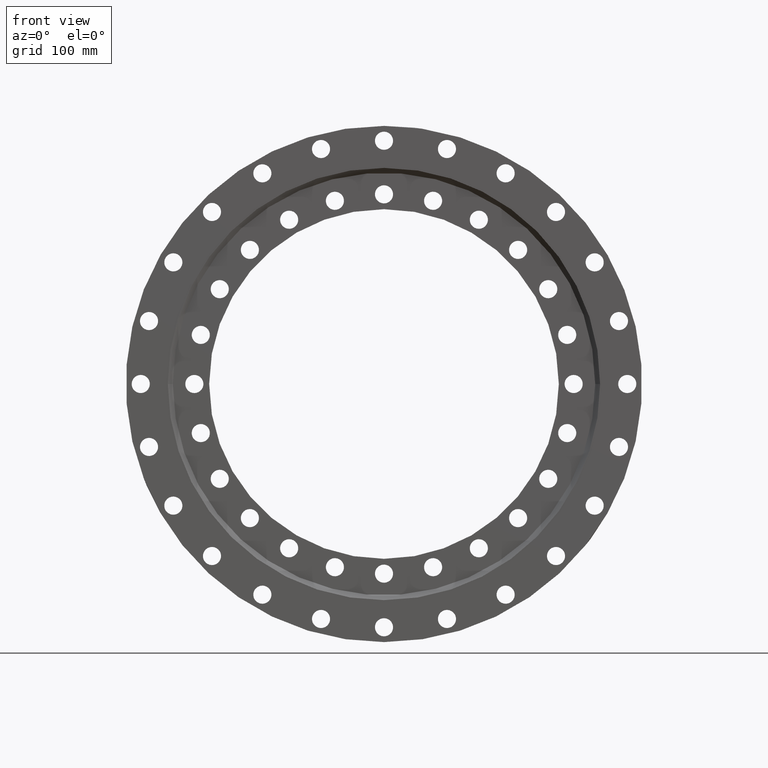
[diagram: clean part render]
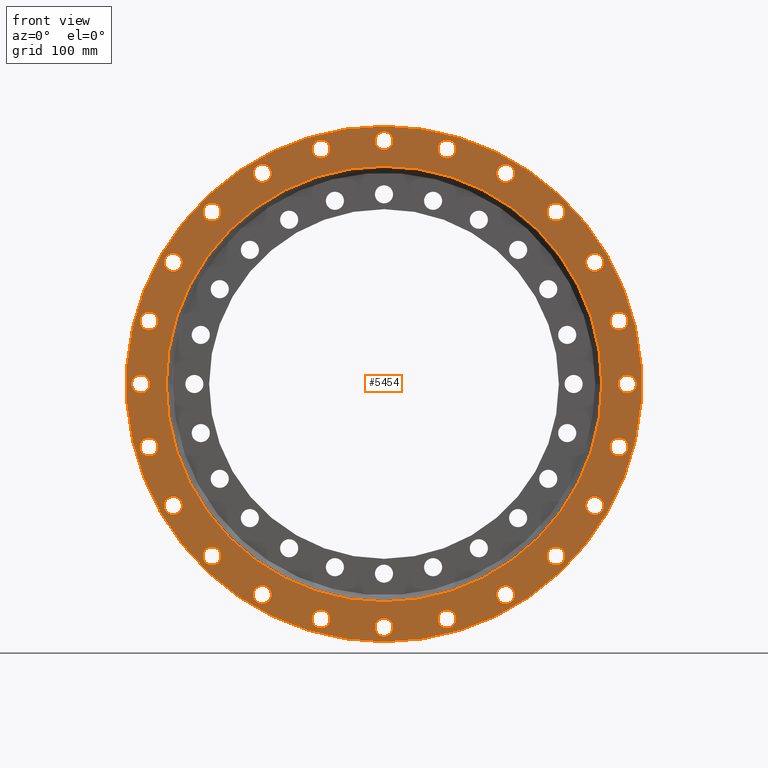
[diagram: same view with one face highlighted and labeled with its STEP entity id]
A machine part, front view. The second image highlights one B-rep face of the part: STEP entity #5454.
In plain terms, the highlighted planar face has unit normal (-0, 1, 0).
Its self-contained STEP definition (entity closure, byte-faithful):
#8 = AXIS2_PLACEMENT_3D ( 'NONE', #3671, #3073, #1724 ) ;
#30 = FACE_BOUND ( 'NONE', #47, .T. ) ;
#31 = CARTESIAN_POINT ( 'NONE',  ( -284.9481187552742700, -35.99999999999999300, 65.35161830524695900 ) ) ;
#47 = EDGE_LOOP ( 'NONE', ( #4061, #4042 ) ) ;
#64 = CARTESIAN_POINT ( 'NONE',  ( 76.35161830524161500, -35.99999999999999300, -284.9481187552756300 ) ) ;
#67 = DIRECTION ( 'NONE',  ( -0.4999999999999947300, 0.0000000000000000000, -0.8660254037844417100 ) ) ;
#76 = CIRCLE ( 'NONE', #5850, 10.99999999999999100 ) ;
#84 = VERTEX_POINT ( 'NONE', #4475 ) ;
#97 = CARTESIAN_POINT ( 'NONE',  ( 0.0000000000000000000, -35.99999999999999300, 312.5000000000000000 ) ) ;
#108 = VERTEX_POINT ( 'NONE', #2652 ) ;
#121 = DIRECTION ( 'NONE',  ( 0.7071067811865525700, 0.0000000000000000000, -0.7071067811865424700 ) ) ;
#122 = CARTESIAN_POINT ( 'NONE',  ( 147.4999999999983800, -35.99999999999999300, -255.4774941164103600 ) ) ;
#125 = FACE_BOUND ( 'NONE', #3091, .T. ) ;
#139 = DIRECTION ( 'NONE',  ( 0.0000000000000000000, 1.000000000000000000, 0.0000000000000000000 ) ) ;
#142 = EDGE_LOOP ( 'NONE', ( #3827, #3847 ) ) ;
#146 = DIRECTION ( 'NONE',  ( 0.8660254037844326000, 0.0000000000000000000, 0.5000000000000105500 ) ) ;
#187 = CARTESIAN_POINT ( 'NONE',  ( -284.9481187552759700, -35.99999999999999300, -65.35161830524064900 ) ) ;
#206 = DIRECTION ( 'NONE',  ( 0.0000000000000000000, 1.000000000000000000, 0.0000000000000000000 ) ) ;
#221 = CARTESIAN_POINT ( 'NONE',  ( -255.4774941164075700, -35.99999999999999300, 136.5000000000031300 ) ) ;
#243 = EDGE_LOOP ( 'NONE', ( #3895, #3871 ) ) ;
#265 = FACE_BOUND ( 'NONE', #1172, .T. ) ;
#266 = AXIS2_PLACEMENT_3D ( 'NONE', #2072, #2062, #2053 ) ;
#302 = CARTESIAN_POINT ( 'NONE',  ( 255.4774941164085600, -35.99999999999999300, -147.5000000000013400 ) ) ;
#329 = CARTESIAN_POINT ( 'NONE',  ( 295.0000000000000000, -35.99999999999999300, -11.00000000000121300 ) ) ;
#394 = FACE_BOUND ( 'NONE', #5261, .T. ) ;
#440 = VERTEX_POINT ( 'NONE', #5397 ) ;
#452 = VERTEX_POINT ( 'NONE', #5335 ) ;
#455 = DIRECTION ( 'NONE',  ( -0.9659258262890693100, 0.0000000000000000000, 0.2588190451025169100 ) ) ;
#469 = AXIS2_PLACEMENT_3D ( 'NONE', #1833, #1713, #1706 ) ;
#535 = EDGE_LOOP ( 'NONE', ( #3767, #3742 ) ) ;
#540 = DIRECTION ( 'NONE',  ( 0.5000000000000086600, 0.0000000000000000000, -0.8660254037844337100 ) ) ;
#546 = AXIS2_PLACEMENT_3D ( 'NONE', #755, #772, #1596 ) ;
#547 = VERTEX_POINT ( 'NONE', #2682 ) ;
#550 = EDGE_LOOP ( 'NONE', ( #3985, #3940 ) ) ;
#565 = CARTESIAN_POINT ( 'NONE',  ( -76.35161830524595000, -35.99999999999999300, -273.9481187552745500 ) ) ;
#568 = FACE_OUTER_BOUND ( 'NONE', #1059, .T. ) ;
#583 = CARTESIAN_POINT ( 'NONE',  ( 76.35161830524161500, -35.99999999999999300, -295.9481187552756300 ) ) ;
#622 = AXIS2_PLACEMENT_3D ( 'NONE', #3787, #3831, #3566 ) ;
#638 = VERTEX_POINT ( 'NONE', #2460 ) ;
#658 = VERTEX_POINT ( 'NONE', #2917 ) ;
#661 = AXIS2_PLACEMENT_3D ( 'NONE', #3005, #3065, #2992 ) ;
#664 = CARTESIAN_POINT ( 'NONE',  ( -295.0000000000000000, -35.99999999999999300, -10.99999999999673000 ) ) ;
#665 = EDGE_LOOP ( 'NONE', ( #3686, #3721 ) ) ;
#668 = EDGE_CURVE ( 'NONE', #4910, #948, #4683, .T. ) ;
#708 = EDGE_CURVE ( 'NONE', #4237, #1622, #3255, .T. ) ;
#740 = FACE_BOUND ( 'NONE', #2778, .T. ) ;
#743 = EDGE_CURVE ( 'NONE', #2469, #1125, #4312, .T. ) ;
#755 = CARTESIAN_POINT ( 'NONE',  ( -208.5965004500288300, -35.99999999999999300, 208.5965004500342300 ) ) ;
#772 = DIRECTION ( 'NONE',  ( 0.0000000000000000000, 1.000000000000000000, 0.0000000000000000000 ) ) ;
#789 = VERTEX_POINT ( 'NONE', #565 ) ;
#795 = EDGE_LOOP ( 'NONE', ( #4142, #4076 ) ) ;
#806 = AXIS2_PLACEMENT_3D ( 'NONE', #2436, #3575, #5389 ) ;
#810 = AXIS2_PLACEMENT_3D ( 'NONE', #5396, #5359, #5388 ) ;
#816 = CARTESIAN_POINT ( 'NONE',  ( 208.5965004500302800, -35.99999999999999300, -219.5965004500327500 ) ) ;
#842 = AXIS2_PLACEMENT_3D ( 'NONE', #1272, #1393, #1367 ) ;
#854 = VERTEX_POINT ( 'NONE', #2732 ) ;
#893 = EDGE_LOOP ( 'NONE', ( #4208, #4176 ) ) ;
#930 = CIRCLE ( 'NONE', #1194, 11.00000000000001100 ) ;
#948 = VERTEX_POINT ( 'NONE', #3992 ) ;
#994 = CIRCLE ( 'NONE', #622, 11.00000000000000900 ) ;
#998 = CARTESIAN_POINT ( 'NONE',  ( -295.0000000000000000, -35.99999999999999300, 11.00000000000327200 ) ) ;
#1003 = DIRECTION ( 'NONE',  ( 0.0000000000000000000, 1.000000000000000000, 0.0000000000000000000 ) ) ;
#1021 = CARTESIAN_POINT ( 'NONE',  ( 255.4774941164085600, -35.99999999999999300, -158.5000000000013400 ) ) ;
#1032 = CARTESIAN_POINT ( 'NONE',  ( 76.35161830524161500, -35.99999999999999300, -273.9481187552756300 ) ) ;
#1049 = AXIS2_PLACEMENT_3D ( 'NONE', #2067, #2031, #2025 ) ;
#1059 = EDGE_LOOP ( 'NONE', ( #3699, #3731 ) ) ;
#1077 = CIRCLE ( 'NONE', #1514, 11.00000000000002300 ) ;
#1091 = EDGE_CURVE ( 'NONE', #2144, #1589, #1836, .T. ) ;
#1112 = VERTEX_POINT ( 'NONE', #664 ) ;
#1125 = VERTEX_POINT ( 'NONE', #1908 ) ;
#1135 = CARTESIAN_POINT ( 'NONE',  ( -147.4999999999965900, -35.99999999999999300, 266.4774941164113800 ) ) ;
#1141 = CIRCLE ( 'NONE', #4225, 11.00000000000001100 ) ;
#1145 = FACE_BOUND ( 'NONE', #2120, .T. ) ;
#1156 = CARTESIAN_POINT ( 'NONE',  ( 255.4774941164098400, -35.99999999999999300, 147.4999999999992300 ) ) ;
#1170 = DIRECTION ( 'NONE',  ( 0.9659258262890655400, 0.0000000000000000000, 0.2588190451025311200 ) ) ;
#1172 = EDGE_LOOP ( 'NONE', ( #3903, #3914 ) ) ;
#1188 = EDGE_LOOP ( 'NONE', ( #3790, #3792 ) ) ;
#1194 = AXIS2_PLACEMENT_3D ( 'NONE', #3879, #3872, #3859 ) ;
#1217 = CARTESIAN_POINT ( 'NONE',  ( 284.9481187552747800, -35.99999999999999300, -76.35161830524495500 ) ) ;
#1219 = EDGE_LOOP ( 'NONE', ( #3950, #3930 ) ) ;
#1262 = AXIS2_PLACEMENT_3D ( 'NONE', #4391, #3220, #3820 ) ;
#1272 = CARTESIAN_POINT ( 'NONE',  ( 0.0000000000000000000, -35.99999999999999300, 264.0874999999999800 ) ) ;
#1276 = DIRECTION ( 'NONE',  ( 0.9659258262890708700, 0.0000000000000000000, -0.2588190451025110300 ) ) ;
#1293 = CIRCLE ( 'NONE', #546, 11.00000000000002100 ) ;
#1300 = FACE_BOUND ( 'NONE', #4440, .T. ) ;
#1304 = DIRECTION ( 'NONE',  ( 0.0000000000000000000, 1.000000000000000000, 0.0000000000000000000 ) ) ;
#1335 = AXIS2_PLACEMENT_3D ( 'NONE', #2458, #4892, #2479 ) ;
#1342 = DIRECTION ( 'NONE',  ( -0.8660254037844371500, 0.0000000000000000000, -0.5000000000000025500 ) ) ;
#1360 = PLANE ( 'NONE',  #842 ) ;
#1367 = DIRECTION ( 'NONE',  ( 0.0000000000000000000, 0.0000000000000000000, 1.000000000000000000 ) ) ;
#1382 = DIRECTION ( 'NONE',  ( 0.0000000000000000000, 1.000000000000000000, 0.0000000000000000000 ) ) ;
#1384 = CIRCLE ( 'NONE', #1414, 11.00000000000000000 ) ;
#1393 = DIRECTION ( 'NONE',  ( -0.0000000000000000000, 1.000000000000000000, 0.0000000000000000000 ) ) ;
#1414 = AXIS2_PLACEMENT_3D ( 'NONE', #1156, #1382, #146 ) ;
#1434 = EDGE_CURVE ( 'NONE', #1653, #4971, #4540, .T. ) ;
#1438 = FACE_BOUND ( 'NONE', #3902, .T. ) ;
#1450 = AXIS2_PLACEMENT_3D ( 'NONE', #5572, #5782, #5502 ) ;
#1458 = VERTEX_POINT ( 'NONE', #5601 ) ;
#1514 = AXIS2_PLACEMENT_3D ( 'NONE', #1693, #3459, #455 ) ;
#1534 = CARTESIAN_POINT ( 'NONE',  ( 208.5965004500302800, -35.99999999999999300, -208.5965004500327500 ) ) ;
#1552 = VERTEX_POINT ( 'NONE', #5703 ) ;
#1589 = VERTEX_POINT ( 'NONE', #3177 ) ;
#1596 = DIRECTION ( 'NONE',  ( -0.7071067811865486800, 0.0000000000000000000, 0.7071067811865462400 ) ) ;
#1622 = VERTEX_POINT ( 'NONE', #1032 ) ;
#1653 = VERTEX_POINT ( 'NONE', #1021 ) ;
#1693 = CARTESIAN_POINT ( 'NONE',  ( -284.9481187552742700, -35.99999999999999300, 76.35161830524694400 ) ) ;
#1697 = FACE_BOUND ( 'NONE', #2022, .T. ) ;
#1706 = DIRECTION ( 'NONE',  ( 0.8660254037844428200, 0.0000000000000000000, -0.4999999999999928900 ) ) ;
#1711 = DIRECTION ( 'NONE',  ( 0.0000000000000000000, -1.000000000000000000, 0.0000000000000000000 ) ) ;
#1713 = DIRECTION ( 'NONE',  ( 0.0000000000000000000, 1.000000000000000000, 0.0000000000000000000 ) ) ;
#1724 = DIRECTION ( 'NONE',  ( 0.7071067811865400200, 0.0000000000000000000, 0.7071067811865551200 ) ) ;
#1725 = VERTEX_POINT ( 'NONE', #4993 ) ;
#1727 = AXIS2_PLACEMENT_3D ( 'NONE', #2592, #2445, #2439 ) ;
#1759 = EDGE_CURVE ( 'NONE', #4213, #638, #5025, .T. ) ;
#1794 = CARTESIAN_POINT ( 'NONE',  ( 0.0000000000000000000, -35.99999999999999300, 264.0874999999999800 ) ) ;
#1814 = CARTESIAN_POINT ( 'NONE',  ( 284.9481187552747800, -35.99999999999999300, -76.35161830524495500 ) ) ;
#1833 = CARTESIAN_POINT ( 'NONE',  ( 255.4774941164085600, -35.99999999999999300, -147.5000000000013400 ) ) ;
#1836 = CIRCLE ( 'NONE', #1945, 10.99999999999998000 ) ;
#1849 = CARTESIAN_POINT ( 'NONE',  ( -208.5965004500334600, -35.99999999999999300, -208.5965004500295700 ) ) ;
#1851 = VERTEX_POINT ( 'NONE', #998 ) ;
#1873 = DIRECTION ( 'NONE',  ( 0.9659258262890708700, 0.0000000000000000000, -0.2588190451025110300 ) ) ;
#1908 = CARTESIAN_POINT ( 'NONE',  ( 147.4999999999983800, -35.99999999999999300, -244.4774941164103600 ) ) ;
#1918 = DIRECTION ( 'NONE',  ( 0.0000000000000000000, 1.000000000000000000, 0.0000000000000000000 ) ) ;
#1930 = VERTEX_POINT ( 'NONE', #4072 ) ;
#1936 = AXIS2_PLACEMENT_3D ( 'NONE', #5806, #1003, #1170 ) ;
#1945 = AXIS2_PLACEMENT_3D ( 'NONE', #2335, #206, #3577 ) ;
#1979 = EDGE_CURVE ( 'NONE', #854, #3386, #5500, .T. ) ;
#1985 = CIRCLE ( 'NONE', #2440, 11.00000000000001600 ) ;
#2022 = EDGE_LOOP ( 'NONE', ( #3717, #3750 ) ) ;
#2025 = DIRECTION ( 'NONE',  ( 0.2588190451025276200, 0.0000000000000000000, -0.9659258262890664200 ) ) ;
#2031 = DIRECTION ( 'NONE',  ( 0.0000000000000000000, 1.000000000000000000, 0.0000000000000000000 ) ) ;
#2053 = DIRECTION ( 'NONE',  ( 6.982962677686258800E-015, 0.0000000000000000000, -1.000000000000000000 ) ) ;
#2056 = CIRCLE ( 'NONE', #2584, 10.99999999999999300 ) ;
#2061 = CIRCLE ( 'NONE', #2891, 11.00000000000001400 ) ;
#2062 = DIRECTION ( 'NONE',  ( 0.0000000000000000000, 1.000000000000000000, 0.0000000000000000000 ) ) ;
#2067 = CARTESIAN_POINT ( 'NONE',  ( 76.35161830524161500, -35.99999999999999300, -284.9481187552756300 ) ) ;
#2072 = CARTESIAN_POINT ( 'NONE',  ( -2.242140230505032900E-012, -35.99999999999999300, -295.0000000000000000 ) ) ;
#2093 = CIRCLE ( 'NONE', #661, 264.0874999999999800 ) ;
#2108 = AXIS2_PLACEMENT_3D ( 'NONE', #4480, #4484, #4343 ) ;
#2120 = EDGE_LOOP ( 'NONE', ( #4080, #4096 ) ) ;
#2129 = VERTEX_POINT ( 'NONE', #97 ) ;
#2141 = CIRCLE ( 'NONE', #2302, 11.00000000000000000 ) ;
#2144 = VERTEX_POINT ( 'NONE', #221 ) ;
#2153 = VERTEX_POINT ( 'NONE', #187 ) ;
#2173 = CIRCLE ( 'NONE', #4371, 10.99999999999999100 ) ;
#2184 = DIRECTION ( 'NONE',  ( 0.0000000000000000000, 1.000000000000000000, 0.0000000000000000000 ) ) ;
#2186 = CARTESIAN_POINT ( 'NONE',  ( -284.9481187552759700, -35.99999999999999300, -76.35161830524064900 ) ) ;
#2224 = CARTESIAN_POINT ( 'NONE',  ( 208.5965004500320400, -35.99999999999999300, 197.5965004500309900 ) ) ;
#2235 = VERTEX_POINT ( 'NONE', #816 ) ;
#2244 = VERTEX_POINT ( 'NONE', #1135 ) ;
#2302 = AXIS2_PLACEMENT_3D ( 'NONE', #3009, #3007, #3001 ) ;
#2306 = DIRECTION ( 'NONE',  ( 0.5000000000000086600, 0.0000000000000000000, -0.8660254037844337100 ) ) ;
#2312 = AXIS2_PLACEMENT_3D ( 'NONE', #3458, #5304, #1342 ) ;
#2335 = CARTESIAN_POINT ( 'NONE',  ( -255.4774941164075700, -35.99999999999999300, 147.5000000000031300 ) ) ;
#2340 = EDGE_CURVE ( 'NONE', #1851, #1112, #5203, .T. ) ;
#2353 = VERTEX_POINT ( 'NONE', #4541 ) ;
#2387 = EDGE_CURVE ( 'NONE', #2235, #2353, #5138, .T. ) ;
#2393 = DIRECTION ( 'NONE',  ( 0.0000000000000000000, 1.000000000000000000, 0.0000000000000000000 ) ) ;
#2401 = FACE_BOUND ( 'NONE', #243, .T. ) ;
#2402 = CARTESIAN_POINT ( 'NONE',  ( -147.4999999999965900, -35.99999999999999300, 255.4774941164113500 ) ) ;
#2411 = CARTESIAN_POINT ( 'NONE',  ( 147.5000000000004300, -35.99999999999999300, 255.4774941164091300 ) ) ;
#2413 = CARTESIAN_POINT ( 'NONE',  ( 147.4999999999983800, -35.99999999999999300, -255.4774941164103600 ) ) ;
#2423 = CIRCLE ( 'NONE', #266, 11.00000000000001100 ) ;
#2426 = CIRCLE ( 'NONE', #1049, 10.99999999999999800 ) ;
#2429 = DIRECTION ( 'NONE',  ( -0.5000000000000007800, 0.0000000000000000000, 0.8660254037844382600 ) ) ;
#2430 = CIRCLE ( 'NONE', #1727, 10.99999999999998000 ) ;
#2433 = CIRCLE ( 'NONE', #3694, 10.99999999999998600 ) ;
#2435 = DIRECTION ( 'NONE',  ( 0.0000000000000000000, 1.000000000000000000, 0.0000000000000000000 ) ) ;
#2436 = CARTESIAN_POINT ( 'NONE',  ( -295.0000000000000000, -35.99999999999999300, 3.272127225463757200E-012 ) ) ;
#2437 = DIRECTION ( 'NONE',  ( -0.9659258262890670900, 0.0000000000000000000, -0.2588190451025252400 ) ) ;
#2439 = DIRECTION ( 'NONE',  ( -0.2588190451025216800, 0.0000000000000000000, 0.9659258262890679800 ) ) ;
#2440 = AXIS2_PLACEMENT_3D ( 'NONE', #3182, #3217, #3201 ) ;
#2445 = DIRECTION ( 'NONE',  ( 0.0000000000000000000, 1.000000000000000000, 0.0000000000000000000 ) ) ;
#2458 = CARTESIAN_POINT ( 'NONE',  ( -255.4774941164075700, -35.99999999999999300, 147.5000000000031300 ) ) ;
#2460 = CARTESIAN_POINT ( 'NONE',  ( -284.9481187552742700, -35.99999999999999300, 87.35161830524694400 ) ) ;
#2469 = VERTEX_POINT ( 'NONE', #5153 ) ;
#2479 = DIRECTION ( 'NONE',  ( -0.8660254037844393700, 0.0000000000000000000, 0.4999999999999987800 ) ) ;
#2487 = CIRCLE ( 'NONE', #3768, 11.00000000000000500 ) ;
#2530 = FACE_BOUND ( 'NONE', #3724, .T. ) ;
#2531 = EDGE_CURVE ( 'NONE', #5178, #5137, #4846, .T. ) ;
#2561 = DIRECTION ( 'NONE',  ( -0.4999999999999947300, 0.0000000000000000000, -0.8660254037844417100 ) ) ;
#2584 = AXIS2_PLACEMENT_3D ( 'NONE', #2922, #2954, #2948 ) ;
#2592 = CARTESIAN_POINT ( 'NONE',  ( -76.35161830523965400, -35.99999999999999300, 284.9481187552762000 ) ) ;
#2609 = FACE_BOUND ( 'NONE', #893, .T. ) ;
#2620 = EDGE_CURVE ( 'NONE', #2244, #452, #5279, .T. ) ;
#2627 = EDGE_CURVE ( 'NONE', #1589, #2144, #3193, .T. ) ;
#2652 = CARTESIAN_POINT ( 'NONE',  ( -208.5965004500334600, -35.99999999999999300, -197.5965004500295400 ) ) ;
#2654 = CIRCLE ( 'NONE', #3316, 11.00000000000001100 ) ;
#2676 = FACE_BOUND ( 'NONE', #5089, .T. ) ;
#2682 = CARTESIAN_POINT ( 'NONE',  ( 284.9481187552753500, -35.99999999999999300, 87.35161830524261000 ) ) ;
#2693 = DIRECTION ( 'NONE',  ( 0.0000000000000000000, 0.0000000000000000000, 1.000000000000000000 ) ) ;
#2699 = DIRECTION ( 'NONE',  ( 0.0000000000000000000, 1.000000000000000000, 0.0000000000000000000 ) ) ;
#2708 = AXIS2_PLACEMENT_3D ( 'NONE', #3391, #3387, #3419 ) ;
#2711 = CIRCLE ( 'NONE', #5149, 11.00000000000000900 ) ;
#2718 = VERTEX_POINT ( 'NONE', #2836 ) ;
#2725 = VERTEX_POINT ( 'NONE', #2949 ) ;
#2732 = CARTESIAN_POINT ( 'NONE',  ( -255.4774941164109000, -35.99999999999999300, -158.4999999999975000 ) ) ;
#2740 = EDGE_CURVE ( 'NONE', #638, #4213, #1077, .T. ) ;
#2756 = CARTESIAN_POINT ( 'NONE',  ( 0.0000000000000000000, -35.99999999999999300, 0.0000000000000000000 ) ) ;
#2758 = DIRECTION ( 'NONE',  ( -0.0000000000000000000, 1.000000000000000000, -0.0000000000000000000 ) ) ;
#2769 = VERTEX_POINT ( 'NONE', #3504 ) ;
#2778 = EDGE_LOOP ( 'NONE', ( #4110, #4159 ) ) ;
#2836 = CARTESIAN_POINT ( 'NONE',  ( -76.35161830524595000, -35.99999999999999300, -295.9481187552745500 ) ) ;
#2845 = CIRCLE ( 'NONE', #2708, 11.00000000000000000 ) ;
#2884 = DIRECTION ( 'NONE',  ( 0.0000000000000000000, 1.000000000000000000, 0.0000000000000000000 ) ) ;
#2891 = AXIS2_PLACEMENT_3D ( 'NONE', #3132, #3124, #2561 ) ;
#2902 = CIRCLE ( 'NONE', #469, 11.00000000000000000 ) ;
#2917 = CARTESIAN_POINT ( 'NONE',  ( -147.5000000000022200, -35.99999999999999300, -266.4774941164080800 ) ) ;
#2919 = CIRCLE ( 'NONE', #4172, 11.00000000000001400 ) ;
#2922 = CARTESIAN_POINT ( 'NONE',  ( 76.35161830524396000, -35.99999999999999300, 284.9481187552750600 ) ) ;
#2948 = DIRECTION ( 'NONE',  ( 0.2588190451025075300, 0.0000000000000000000, 0.9659258262890719800 ) ) ;
#2949 = CARTESIAN_POINT ( 'NONE',  ( 284.9481187552753500, -35.99999999999999300, 65.35161830524262400 ) ) ;
#2954 = DIRECTION ( 'NONE',  ( 0.0000000000000000000, 1.000000000000000000, 0.0000000000000000000 ) ) ;
#2976 = EDGE_CURVE ( 'NONE', #5310, #4877, #1293, .T. ) ;
#2992 = DIRECTION ( 'NONE',  ( 0.0000000000000000000, 0.0000000000000000000, 1.000000000000000000 ) ) ;
#3001 = DIRECTION ( 'NONE',  ( -0.7071067811865450200, 0.0000000000000000000, -0.7071067811865501300 ) ) ;
#3005 = CARTESIAN_POINT ( 'NONE',  ( 0.0000000000000000000, -35.99999999999999300, 0.0000000000000000000 ) ) ;
#3007 = DIRECTION ( 'NONE',  ( 0.0000000000000000000, 1.000000000000000000, 0.0000000000000000000 ) ) ;
#3009 = CARTESIAN_POINT ( 'NONE',  ( -208.5965004500334600, -35.99999999999999300, -208.5965004500295700 ) ) ;
#3046 = CIRCLE ( 'NONE', #1262, 312.5000000000000000 ) ;
#3058 = CIRCLE ( 'NONE', #5239, 11.00000000000001100 ) ;
#3065 = DIRECTION ( 'NONE',  ( -0.0000000000000000000, 1.000000000000000000, -0.0000000000000000000 ) ) ;
#3073 = DIRECTION ( 'NONE',  ( 0.0000000000000000000, 1.000000000000000000, 0.0000000000000000000 ) ) ;
#3077 = CIRCLE ( 'NONE', #3278, 10.99999999999997200 ) ;
#3083 = DIRECTION ( 'NONE',  ( 0.0000000000000000000, 1.000000000000000000, 0.0000000000000000000 ) ) ;
#3091 = EDGE_LOOP ( 'NONE', ( #3865, #3840 ) ) ;
#3106 = CARTESIAN_POINT ( 'NONE',  ( 147.5000000000004300, -35.99999999999999300, 255.4774941164091300 ) ) ;
#3114 = CARTESIAN_POINT ( 'NONE',  ( 4.302114220422481600E-012, -35.99999999999999300, 295.0000000000000000 ) ) ;
#3124 = DIRECTION ( 'NONE',  ( 0.0000000000000000000, 1.000000000000000000, 0.0000000000000000000 ) ) ;
#3132 = CARTESIAN_POINT ( 'NONE',  ( -147.5000000000022200, -35.99999999999999300, -255.4774941164080800 ) ) ;
#3137 = CIRCLE ( 'NONE', #5422, 10.99999999999998000 ) ;
#3141 = CIRCLE ( 'NONE', #3817, 312.5000000000000000 ) ;
#3143 = CARTESIAN_POINT ( 'NONE',  ( 76.35161830524396000, -35.99999999999999300, 295.9481187552750600 ) ) ;
#3175 = DIRECTION ( 'NONE',  ( 0.0000000000000000000, 0.0000000000000000000, 1.000000000000000000 ) ) ;
#3177 = CARTESIAN_POINT ( 'NONE',  ( -255.4774941164075700, -35.99999999999999300, 158.5000000000031300 ) ) ;
#3182 = CARTESIAN_POINT ( 'NONE',  ( -76.35161830524595000, -35.99999999999999300, -284.9481187552745500 ) ) ;
#3185 = DIRECTION ( 'NONE',  ( 0.4999999999999891200, 0.0000000000000000000, 0.8660254037844450400 ) ) ;
#3187 = EDGE_CURVE ( 'NONE', #1458, #5049, #4649, .T. ) ;
#3193 = CIRCLE ( 'NONE', #1335, 10.99999999999998000 ) ;
#3201 = DIRECTION ( 'NONE',  ( -0.2588190451025145200, 0.0000000000000000000, -0.9659258262890698700 ) ) ;
#3211 = CIRCLE ( 'NONE', #3406, 10.99999999999999300 ) ;
#3217 = DIRECTION ( 'NONE',  ( 0.0000000000000000000, 1.000000000000000000, 0.0000000000000000000 ) ) ;
#3220 = DIRECTION ( 'NONE',  ( 0.0000000000000000000, -1.000000000000000000, 0.0000000000000000000 ) ) ;
#3225 = CIRCLE ( 'NONE', #8, 11.00000000000000000 ) ;
#3234 = VERTEX_POINT ( 'NONE', #4516 ) ;
#3255 = CIRCLE ( 'NONE', #5120, 10.99999999999999800 ) ;
#3260 = VERTEX_POINT ( 'NONE', #4268 ) ;
#3278 = AXIS2_PLACEMENT_3D ( 'NONE', #3106, #3083, #3185 ) ;
#3280 = DIRECTION ( 'NONE',  ( 0.0000000000000000000, 1.000000000000000000, 0.0000000000000000000 ) ) ;
#3294 = DIRECTION ( 'NONE',  ( 0.8660254037844428200, 0.0000000000000000000, -0.4999999999999928900 ) ) ;
#3299 = CARTESIAN_POINT ( 'NONE',  ( -284.9481187552742700, -35.99999999999999300, 76.35161830524694400 ) ) ;
#3304 = CARTESIAN_POINT ( 'NONE',  ( -2.242140230505032900E-012, -35.99999999999999300, -295.0000000000000000 ) ) ;
#3305 = CIRCLE ( 'NONE', #806, 11.00000000000001100 ) ;
#3316 = AXIS2_PLACEMENT_3D ( 'NONE', #3304, #3816, #3841 ) ;
#3332 = EDGE_CURVE ( 'NONE', #3860, #1725, #2845, .T. ) ;
#3336 = DIRECTION ( 'NONE',  ( 0.0000000000000000000, 1.000000000000000000, 0.0000000000000000000 ) ) ;
#3348 = EDGE_LOOP ( 'NONE', ( #3932, #3880 ) ) ;
#3374 = CARTESIAN_POINT ( 'NONE',  ( -208.5965004500288300, -35.99999999999999300, 197.5965004500342000 ) ) ;
#3386 = VERTEX_POINT ( 'NONE', #4073 ) ;
#3387 = DIRECTION ( 'NONE',  ( 0.0000000000000000000, 1.000000000000000000, 0.0000000000000000000 ) ) ;
#3391 = CARTESIAN_POINT ( 'NONE',  ( 208.5965004500320400, -35.99999999999999300, 208.5965004500310200 ) ) ;
#3395 = FACE_BOUND ( 'NONE', #665, .T. ) ;
#3400 = DIRECTION ( 'NONE',  ( 0.0000000000000000000, 1.000000000000000000, 0.0000000000000000000 ) ) ;
#3406 = AXIS2_PLACEMENT_3D ( 'NONE', #3499, #3493, #4253 ) ;
#3419 = DIRECTION ( 'NONE',  ( 0.7071067811865400200, 0.0000000000000000000, 0.7071067811865551200 ) ) ;
#3426 = EDGE_CURVE ( 'NONE', #440, #4739, #2654, .T. ) ;
#3454 = VERTEX_POINT ( 'NONE', #4411 ) ;
#3458 = CARTESIAN_POINT ( 'NONE',  ( -255.4774941164109000, -35.99999999999999300, -147.4999999999975000 ) ) ;
#3459 = DIRECTION ( 'NONE',  ( 0.0000000000000000000, 1.000000000000000000, 0.0000000000000000000 ) ) ;
#3479 = CIRCLE ( 'NONE', #1450, 11.00000000000001600 ) ;
#3484 = DIRECTION ( 'NONE',  ( -0.7071067811865486800, 0.0000000000000000000, 0.7071067811865462400 ) ) ;
#3489 = DIRECTION ( 'NONE',  ( 0.0000000000000000000, 1.000000000000000000, 0.0000000000000000000 ) ) ;
#3493 = DIRECTION ( 'NONE',  ( 0.0000000000000000000, 1.000000000000000000, 0.0000000000000000000 ) ) ;
#3497 = CARTESIAN_POINT ( 'NONE',  ( -208.5965004500288300, -35.99999999999999300, 208.5965004500342300 ) ) ;
#3499 = CARTESIAN_POINT ( 'NONE',  ( 76.35161830524396000, -35.99999999999999300, 284.9481187552750600 ) ) ;
#3504 = CARTESIAN_POINT ( 'NONE',  ( 3.234139115698266400E-014, -35.99999999999999300, -264.0874999999999800 ) ) ;
#3510 = EDGE_CURVE ( 'NONE', #4877, #5310, #4613, .T. ) ;
#3533 = EDGE_CURVE ( 'NONE', #2725, #547, #2711, .T. ) ;
#3537 = DIRECTION ( 'NONE',  ( -0.9659258262890670900, 0.0000000000000000000, -0.2588190451025252400 ) ) ;
#3543 = DIRECTION ( 'NONE',  ( 0.0000000000000000000, 1.000000000000000000, 0.0000000000000000000 ) ) ;
#3546 = EDGE_CURVE ( 'NONE', #2153, #4130, #76, .T. ) ;
#3566 = DIRECTION ( 'NONE',  ( -0.8660254037844371500, 0.0000000000000000000, -0.5000000000000025500 ) ) ;
#3572 = CARTESIAN_POINT ( 'NONE',  ( -284.9481187552759700, -35.99999999999999300, -76.35161830524064900 ) ) ;
#3575 = DIRECTION ( 'NONE',  ( 0.0000000000000000000, 1.000000000000000000, 0.0000000000000000000 ) ) ;
#3577 = DIRECTION ( 'NONE',  ( -0.8660254037844393700, 0.0000000000000000000, 0.4999999999999987800 ) ) ;
#3579 = EDGE_CURVE ( 'NONE', #3386, #854, #994, .T. ) ;
#3606 = EDGE_CURVE ( 'NONE', #4205, #1930, #930, .T. ) ;
#3608 = FACE_BOUND ( 'NONE', #3348, .T. ) ;
#3621 = DIRECTION ( 'NONE',  ( 0.9659258262890655400, 0.0000000000000000000, 0.2588190451025311200 ) ) ;
#3625 = EDGE_CURVE ( 'NONE', #108, #3234, #2141, .T. ) ;
#3634 = DIRECTION ( 'NONE',  ( 0.0000000000000000000, 1.000000000000000000, 0.0000000000000000000 ) ) ;
#3640 = EDGE_CURVE ( 'NONE', #4647, #3685, #2056, .T. ) ;
#3645 = CARTESIAN_POINT ( 'NONE',  ( 284.9481187552753500, -35.99999999999999300, 76.35161830524262400 ) ) ;
#3648 = CARTESIAN_POINT ( 'NONE',  ( -76.35161830523965400, -35.99999999999999300, 284.9481187552762000 ) ) ;
#3652 = DIRECTION ( 'NONE',  ( 0.0000000000000000000, 1.000000000000000000, 0.0000000000000000000 ) ) ;
#3656 = EDGE_CURVE ( 'NONE', #5075, #658, #2061, .T. ) ;
#3671 = CARTESIAN_POINT ( 'NONE',  ( 208.5965004500320400, -35.99999999999999300, 208.5965004500310200 ) ) ;
#3685 = VERTEX_POINT ( 'NONE', #3143 ) ;
#3686 = ORIENTED_EDGE ( 'NONE', *, *, #5639, .T. ) ;
#3687 = CIRCLE ( 'NONE', #810, 10.99999999999999500 ) ;
#3694 = AXIS2_PLACEMENT_3D ( 'NONE', #2413, #2393, #2306 ) ;
#3699 = ORIENTED_EDGE ( 'NONE', *, *, #4536, .T. ) ;
#3700 = CIRCLE ( 'NONE', #5570, 11.00000000000000000 ) ;
#3702 = AXIS2_PLACEMENT_3D ( 'NONE', #4455, #3400, #4349 ) ;
#3717 = ORIENTED_EDGE ( 'NONE', *, *, #4498, .T. ) ;
#3718 = EDGE_CURVE ( 'NONE', #789, #2718, #1985, .T. ) ;
#3721 = ORIENTED_EDGE ( 'NONE', *, *, #5579, .T. ) ;
#3724 = EDGE_LOOP ( 'NONE', ( #4020, #3991 ) ) ;
#3731 = ORIENTED_EDGE ( 'NONE', *, *, #4274, .T. ) ;
#3742 = ORIENTED_EDGE ( 'NONE', *, *, #3785, .T. ) ;
#3745 = FACE_BOUND ( 'NONE', #550, .T. ) ;
#3749 = DIRECTION ( 'NONE',  ( -0.7071067811865450200, 0.0000000000000000000, -0.7071067811865501300 ) ) ;
#3750 = ORIENTED_EDGE ( 'NONE', *, *, #4151, .T. ) ;
#3756 = ORIENTED_EDGE ( 'NONE', *, *, #4331, .T. ) ;
#3767 = ORIENTED_EDGE ( 'NONE', *, *, #4403, .T. ) ;
#3768 = AXIS2_PLACEMENT_3D ( 'NONE', #1217, #1304, #1276 ) ;
#3769 = EDGE_CURVE ( 'NONE', #4130, #2153, #2173, .T. ) ;
#3785 = EDGE_CURVE ( 'NONE', #5611, #3454, #2430, .T. ) ;
#3787 = CARTESIAN_POINT ( 'NONE',  ( -255.4774941164109000, -35.99999999999999300, -147.4999999999975000 ) ) ;
#3789 = ORIENTED_EDGE ( 'NONE', *, *, #4297, .T. ) ;
#3790 = ORIENTED_EDGE ( 'NONE', *, *, #4461, .T. ) ;
#3791 = CIRCLE ( 'NONE', #2108, 11.00000000000001100 ) ;
#3792 = ORIENTED_EDGE ( 'NONE', *, *, #3640, .T. ) ;
#3801 = DIRECTION ( 'NONE',  ( 0.0000000000000000000, 0.0000000000000000000, 1.000000000000000000 ) ) ;
#3806 = EDGE_CURVE ( 'NONE', #4739, #440, #2423, .T. ) ;
#3813 = ORIENTED_EDGE ( 'NONE', *, *, #668, .T. ) ;
#3816 = DIRECTION ( 'NONE',  ( 0.0000000000000000000, 1.000000000000000000, 0.0000000000000000000 ) ) ;
#3817 = AXIS2_PLACEMENT_3D ( 'NONE', #4212, #1711, #3175 ) ;
#3820 = DIRECTION ( 'NONE',  ( 0.0000000000000000000, 0.0000000000000000000, 1.000000000000000000 ) ) ;
#3827 = ORIENTED_EDGE ( 'NONE', *, *, #4249, .T. ) ;
#3831 = DIRECTION ( 'NONE',  ( 0.0000000000000000000, 1.000000000000000000, 0.0000000000000000000 ) ) ;
#3836 = EDGE_CURVE ( 'NONE', #1125, #2469, #2433, .T. ) ;
#3837 = ORIENTED_EDGE ( 'NONE', *, *, #3332, .T. ) ;
#3840 = ORIENTED_EDGE ( 'NONE', *, *, #3533, .T. ) ;
#3841 = DIRECTION ( 'NONE',  ( 6.982962677686258800E-015, 0.0000000000000000000, -1.000000000000000000 ) ) ;
#3847 = ORIENTED_EDGE ( 'NONE', *, *, #3187, .T. ) ;
#3850 = AXIS2_PLACEMENT_3D ( 'NONE', #3299, #2884, #3969 ) ;
#3859 = DIRECTION ( 'NONE',  ( 1.000000000000000000, 0.0000000000000000000, 1.047444401652938900E-014 ) ) ;
#3860 = VERTEX_POINT ( 'NONE', #2224 ) ;
#3865 = ORIENTED_EDGE ( 'NONE', *, *, #4217, .T. ) ;
#3871 = ORIENTED_EDGE ( 'NONE', *, *, #2531, .T. ) ;
#3872 = DIRECTION ( 'NONE',  ( 0.0000000000000000000, 1.000000000000000000, 0.0000000000000000000 ) ) ;
#3876 = EDGE_CURVE ( 'NONE', #1622, #4237, #2426, .T. ) ;
#3877 = FACE_BOUND ( 'NONE', #535, .T. ) ;
#3879 = CARTESIAN_POINT ( 'NONE',  ( 295.0000000000000000, -35.99999999999999300, -1.212153235546308700E-012 ) ) ;
#3880 = ORIENTED_EDGE ( 'NONE', *, *, #1434, .T. ) ;
#3889 = ORIENTED_EDGE ( 'NONE', *, *, #3606, .T. ) ;
#3895 = ORIENTED_EDGE ( 'NONE', *, *, #3984, .T. ) ;
#3902 = EDGE_LOOP ( 'NONE', ( #3989, #3934 ) ) ;
#3903 = ORIENTED_EDGE ( 'NONE', *, *, #3836, .T. ) ;
#3914 = ORIENTED_EDGE ( 'NONE', *, *, #743, .T. ) ;
#3917 = EDGE_CURVE ( 'NONE', #4971, #1653, #2902, .T. ) ;
#3924 = ORIENTED_EDGE ( 'NONE', *, *, #4129, .T. ) ;
#3930 = ORIENTED_EDGE ( 'NONE', *, *, #2387, .T. ) ;
#3932 = ORIENTED_EDGE ( 'NONE', *, *, #3917, .T. ) ;
#3934 = ORIENTED_EDGE ( 'NONE', *, *, #708, .T. ) ;
#3940 = ORIENTED_EDGE ( 'NONE', *, *, #3426, .T. ) ;
#3950 = ORIENTED_EDGE ( 'NONE', *, *, #4089, .T. ) ;
#3960 = EDGE_LOOP ( 'NONE', ( #4113, #4091 ) ) ;
#3969 = DIRECTION ( 'NONE',  ( -0.9659258262890693100, 0.0000000000000000000, 0.2588190451025169100 ) ) ;
#3984 = EDGE_CURVE ( 'NONE', #5137, #5178, #2487, .T. ) ;
#3985 = ORIENTED_EDGE ( 'NONE', *, *, #3806, .T. ) ;
#3989 = ORIENTED_EDGE ( 'NONE', *, *, #3876, .T. ) ;
#3991 = ORIENTED_EDGE ( 'NONE', *, *, #4623, .T. ) ;
#3992 = CARTESIAN_POINT ( 'NONE',  ( 147.5000000000004300, -35.99999999999999300, 266.4774941164091600 ) ) ;
#4020 = ORIENTED_EDGE ( 'NONE', *, *, #3718, .T. ) ;
#4026 = ORIENTED_EDGE ( 'NONE', *, *, #3625, .T. ) ;
#4037 = ORIENTED_EDGE ( 'NONE', *, *, #4559, .T. ) ;
#4038 = VERTEX_POINT ( 'NONE', #1794 ) ;
#4042 = ORIENTED_EDGE ( 'NONE', *, *, #4105, .T. ) ;
#4057 = FACE_BOUND ( 'NONE', #3960, .T. ) ;
#4061 = ORIENTED_EDGE ( 'NONE', *, *, #3656, .T. ) ;
#4072 = CARTESIAN_POINT ( 'NONE',  ( 295.0000000000000000, -35.99999999999999300, 10.99999999999878900 ) ) ;
#4073 = CARTESIAN_POINT ( 'NONE',  ( -255.4774941164109000, -35.99999999999999300, -136.4999999999974700 ) ) ;
#4076 = ORIENTED_EDGE ( 'NONE', *, *, #3769, .T. ) ;
#4080 = ORIENTED_EDGE ( 'NONE', *, *, #3579, .T. ) ;
#4089 = EDGE_CURVE ( 'NONE', #2353, #2235, #4243, .T. ) ;
#4091 = ORIENTED_EDGE ( 'NONE', *, *, #1759, .T. ) ;
#4096 = ORIENTED_EDGE ( 'NONE', *, *, #1979, .T. ) ;
#4105 = EDGE_CURVE ( 'NONE', #658, #5075, #2919, .T. ) ;
#4110 = ORIENTED_EDGE ( 'NONE', *, *, #2340, .T. ) ;
#4113 = ORIENTED_EDGE ( 'NONE', *, *, #2740, .T. ) ;
#4129 = EDGE_CURVE ( 'NONE', #1930, #4205, #1141, .T. ) ;
#4130 = VERTEX_POINT ( 'NONE', #5151 ) ;
#4142 = ORIENTED_EDGE ( 'NONE', *, *, #3546, .T. ) ;
#4149 = ORIENTED_EDGE ( 'NONE', *, *, #2976, .T. ) ;
#4151 = EDGE_CURVE ( 'NONE', #84, #1552, #3791, .T. ) ;
#4159 = ORIENTED_EDGE ( 'NONE', *, *, #4586, .T. ) ;
#4172 = AXIS2_PLACEMENT_3D ( 'NONE', #5599, #5608, #67 ) ;
#4176 = ORIENTED_EDGE ( 'NONE', *, *, #4624, .T. ) ;
#4183 = ORIENTED_EDGE ( 'NONE', *, *, #1091, .T. ) ;
#4186 = DIRECTION ( 'NONE',  ( 0.0000000000000000000, 1.000000000000000000, 0.0000000000000000000 ) ) ;
#4191 = DIRECTION ( 'NONE',  ( 0.8660254037844326000, 0.0000000000000000000, 0.5000000000000105500 ) ) ;
#4195 = DIRECTION ( 'NONE',  ( 0.4999999999999891200, 0.0000000000000000000, 0.8660254037844450400 ) ) ;
#4197 = ORIENTED_EDGE ( 'NONE', *, *, #3510, .T. ) ;
#4205 = VERTEX_POINT ( 'NONE', #329 ) ;
#4208 = ORIENTED_EDGE ( 'NONE', *, *, #2620, .T. ) ;
#4212 = CARTESIAN_POINT ( 'NONE',  ( 0.0000000000000000000, -35.99999999999999300, -1.337991223932615400E-015 ) ) ;
#4213 = VERTEX_POINT ( 'NONE', #31 ) ;
#4217 = EDGE_CURVE ( 'NONE', #547, #2725, #5184, .T. ) ;
#4225 = AXIS2_PLACEMENT_3D ( 'NONE', #5252, #5614, #4858 ) ;
#4226 = ORIENTED_EDGE ( 'NONE', *, *, #2627, .T. ) ;
#4237 = VERTEX_POINT ( 'NONE', #583 ) ;
#4243 = CIRCLE ( 'NONE', #5087, 11.00000000000000000 ) ;
#4248 = DIRECTION ( 'NONE',  ( -0.2588190451025216800, 0.0000000000000000000, 0.9659258262890679800 ) ) ;
#4249 = EDGE_CURVE ( 'NONE', #5049, #1458, #1384, .T. ) ;
#4253 = DIRECTION ( 'NONE',  ( 0.2588190451025075300, 0.0000000000000000000, 0.9659258262890719800 ) ) ;
#4268 = CARTESIAN_POINT ( 'NONE',  ( 3.827021247335479100E-014, -35.99999999999999300, -312.5000000000000000 ) ) ;
#4274 = EDGE_CURVE ( 'NONE', #3260, #2129, #3046, .T. ) ;
#4278 = DIRECTION ( 'NONE',  ( 0.0000000000000000000, 1.000000000000000000, 0.0000000000000000000 ) ) ;
#4297 = EDGE_CURVE ( 'NONE', #1725, #3860, #3225, .T. ) ;
#4312 = CIRCLE ( 'NONE', #5275, 10.99999999999998600 ) ;
#4316 = CARTESIAN_POINT ( 'NONE',  ( -76.35161830523965400, -35.99999999999999300, 273.9481187552762000 ) ) ;
#4331 = EDGE_CURVE ( 'NONE', #948, #4910, #3077, .T. ) ;
#4343 = DIRECTION ( 'NONE',  ( 0.0000000000000000000, 0.0000000000000000000, 1.000000000000000000 ) ) ;
#4349 = DIRECTION ( 'NONE',  ( -1.000000000000000000, 0.0000000000000000000, -3.491481338843147200E-015 ) ) ;
#4371 = AXIS2_PLACEMENT_3D ( 'NONE', #2186, #2184, #2437 ) ;
#4391 = CARTESIAN_POINT ( 'NONE',  ( 0.0000000000000000000, -35.99999999999999300, -1.337991223932615400E-015 ) ) ;
#4403 = EDGE_CURVE ( 'NONE', #3454, #5611, #3137, .T. ) ;
#4411 = CARTESIAN_POINT ( 'NONE',  ( -76.35161830523965400, -35.99999999999999300, 295.9481187552762000 ) ) ;
#4440 = EDGE_LOOP ( 'NONE', ( #3924, #3889 ) ) ;
#4455 = CARTESIAN_POINT ( 'NONE',  ( -295.0000000000000000, -35.99999999999999300, 3.272127225463757200E-012 ) ) ;
#4461 = EDGE_CURVE ( 'NONE', #3685, #4647, #3211, .T. ) ;
#4475 = CARTESIAN_POINT ( 'NONE',  ( 4.303461331901543800E-012, -35.99999999999999300, 284.0000000000000000 ) ) ;
#4480 = CARTESIAN_POINT ( 'NONE',  ( 4.302114220422481600E-012, -35.99999999999999300, 295.0000000000000000 ) ) ;
#4484 = DIRECTION ( 'NONE',  ( 0.0000000000000000000, 1.000000000000000000, 0.0000000000000000000 ) ) ;
#4498 = EDGE_CURVE ( 'NONE', #1552, #84, #3058, .T. ) ;
#4504 = FACE_BOUND ( 'NONE', #5337, .T. ) ;
#4516 = CARTESIAN_POINT ( 'NONE',  ( -208.5965004500334600, -35.99999999999999300, -219.5965004500295700 ) ) ;
#4525 = DIRECTION ( 'NONE',  ( 0.0000000000000000000, 1.000000000000000000, 0.0000000000000000000 ) ) ;
#4534 = CARTESIAN_POINT ( 'NONE',  ( 255.4774941164098400, -35.99999999999999300, 147.4999999999992300 ) ) ;
#4536 = EDGE_CURVE ( 'NONE', #2129, #3260, #3141, .T. ) ;
#4540 = CIRCLE ( 'NONE', #5617, 11.00000000000000000 ) ;
#4541 = CARTESIAN_POINT ( 'NONE',  ( 208.5965004500302800, -35.99999999999999300, -197.5965004500327500 ) ) ;
#4544 = AXIS2_PLACEMENT_3D ( 'NONE', #3497, #3489, #3484 ) ;
#4559 = EDGE_CURVE ( 'NONE', #3234, #108, #3700, .T. ) ;
#4576 = CARTESIAN_POINT ( 'NONE',  ( 76.35161830524396000, -35.99999999999999300, 273.9481187552750000 ) ) ;
#4586 = EDGE_CURVE ( 'NONE', #1112, #1851, #3305, .T. ) ;
#4589 = CARTESIAN_POINT ( 'NONE',  ( -208.5965004500288300, -35.99999999999999300, 219.5965004500342300 ) ) ;
#4613 = CIRCLE ( 'NONE', #4544, 11.00000000000002100 ) ;
#4622 = AXIS2_PLACEMENT_3D ( 'NONE', #1814, #1918, #1873 ) ;
#4623 = EDGE_CURVE ( 'NONE', #2718, #789, #3479, .T. ) ;
#4624 = EDGE_CURVE ( 'NONE', #452, #2244, #3687, .T. ) ;
#4647 = VERTEX_POINT ( 'NONE', #4576 ) ;
#4649 = CIRCLE ( 'NONE', #4969, 11.00000000000000000 ) ;
#4678 = CARTESIAN_POINT ( 'NONE',  ( 147.5000000000004300, -35.99999999999999300, 244.4774941164091300 ) ) ;
#4679 = FACE_BOUND ( 'NONE', #142, .T. ) ;
#4683 = CIRCLE ( 'NONE', #5020, 10.99999999999997200 ) ;
#4700 = AXIS2_PLACEMENT_3D ( 'NONE', #2402, #3280, #2429 ) ;
#4737 = AXIS2_PLACEMENT_3D ( 'NONE', #1534, #139, #121 ) ;
#4739 = VERTEX_POINT ( 'NONE', #4780 ) ;
#4745 = AXIS2_PLACEMENT_3D ( 'NONE', #2756, #2758, #2693 ) ;
#4780 = CARTESIAN_POINT ( 'NONE',  ( -2.242140230505032900E-012, -35.99999999999999300, -284.0000000000000000 ) ) ;
#4793 = CARTESIAN_POINT ( 'NONE',  ( 208.5965004500302800, -35.99999999999999300, -208.5965004500327500 ) ) ;
#4795 = DIRECTION ( 'NONE',  ( 0.0000000000000000000, 1.000000000000000000, 0.0000000000000000000 ) ) ;
#4819 = FACE_BOUND ( 'NONE', #1219, .T. ) ;
#4846 = CIRCLE ( 'NONE', #4622, 11.00000000000000500 ) ;
#4858 = DIRECTION ( 'NONE',  ( 1.000000000000000000, 0.0000000000000000000, 1.047444401652938900E-014 ) ) ;
#4877 = VERTEX_POINT ( 'NONE', #4589 ) ;
#4892 = DIRECTION ( 'NONE',  ( 0.0000000000000000000, 1.000000000000000000, 0.0000000000000000000 ) ) ;
#4910 = VERTEX_POINT ( 'NONE', #4678 ) ;
#4920 = EDGE_LOOP ( 'NONE', ( #4026, #4037 ) ) ;
#4969 = AXIS2_PLACEMENT_3D ( 'NONE', #4534, #4525, #4191 ) ;
#4971 = VERTEX_POINT ( 'NONE', #5066 ) ;
#4993 = CARTESIAN_POINT ( 'NONE',  ( 208.5965004500320400, -35.99999999999999300, 219.5965004500310200 ) ) ;
#5016 = FACE_BOUND ( 'NONE', #4920, .T. ) ;
#5018 = DIRECTION ( 'NONE',  ( 0.2588190451025276200, 0.0000000000000000000, -0.9659258262890664200 ) ) ;
#5020 = AXIS2_PLACEMENT_3D ( 'NONE', #2411, #2435, #4195 ) ;
#5025 = CIRCLE ( 'NONE', #3850, 11.00000000000002300 ) ;
#5038 = CIRCLE ( 'NONE', #4745, 264.0874999999999800 ) ;
#5049 = VERTEX_POINT ( 'NONE', #5168 ) ;
#5066 = CARTESIAN_POINT ( 'NONE',  ( 255.4774941164085600, -35.99999999999999300, -136.5000000000013100 ) ) ;
#5075 = VERTEX_POINT ( 'NONE', #5191 ) ;
#5087 = AXIS2_PLACEMENT_3D ( 'NONE', #4793, #4795, #5732 ) ;
#5089 = EDGE_LOOP ( 'NONE', ( #3756, #3813 ) ) ;
#5106 = FACE_BOUND ( 'NONE', #1188, .T. ) ;
#5120 = AXIS2_PLACEMENT_3D ( 'NONE', #64, #5432, #5018 ) ;
#5137 = VERTEX_POINT ( 'NONE', #5334 ) ;
#5138 = CIRCLE ( 'NONE', #4737, 11.00000000000000000 ) ;
#5142 = EDGE_LOOP ( 'NONE', ( #4197, #4149 ) ) ;
#5149 = AXIS2_PLACEMENT_3D ( 'NONE', #3645, #3634, #3621 ) ;
#5151 = CARTESIAN_POINT ( 'NONE',  ( -284.9481187552759700, -35.99999999999999300, -87.35161830524064900 ) ) ;
#5153 = CARTESIAN_POINT ( 'NONE',  ( 147.4999999999983800, -35.99999999999999300, -266.4774941164103600 ) ) ;
#5168 = CARTESIAN_POINT ( 'NONE',  ( 255.4774941164098400, -35.99999999999999300, 158.4999999999992600 ) ) ;
#5178 = VERTEX_POINT ( 'NONE', #5799 ) ;
#5184 = CIRCLE ( 'NONE', #1936, 11.00000000000000900 ) ;
#5191 = CARTESIAN_POINT ( 'NONE',  ( -147.5000000000022200, -35.99999999999999300, -244.4774941164080800 ) ) ;
#5203 = CIRCLE ( 'NONE', #3702, 11.00000000000001100 ) ;
#5239 = AXIS2_PLACEMENT_3D ( 'NONE', #3114, #4186, #3801 ) ;
#5252 = CARTESIAN_POINT ( 'NONE',  ( 295.0000000000000000, -35.99999999999999300, -1.212153235546308700E-012 ) ) ;
#5261 = EDGE_LOOP ( 'NONE', ( #3789, #3837 ) ) ;
#5275 = AXIS2_PLACEMENT_3D ( 'NONE', #122, #2699, #540 ) ;
#5279 = CIRCLE ( 'NONE', #4700, 10.99999999999999500 ) ;
#5304 = DIRECTION ( 'NONE',  ( 0.0000000000000000000, 1.000000000000000000, 0.0000000000000000000 ) ) ;
#5310 = VERTEX_POINT ( 'NONE', #3374 ) ;
#5334 = CARTESIAN_POINT ( 'NONE',  ( 284.9481187552747800, -35.99999999999999300, -65.35161830524495500 ) ) ;
#5335 = CARTESIAN_POINT ( 'NONE',  ( -147.4999999999965900, -35.99999999999999300, 244.4774941164113500 ) ) ;
#5337 = EDGE_LOOP ( 'NONE', ( #4226, #4183 ) ) ;
#5359 = DIRECTION ( 'NONE',  ( 0.0000000000000000000, 1.000000000000000000, 0.0000000000000000000 ) ) ;
#5388 = DIRECTION ( 'NONE',  ( -0.5000000000000007800, 0.0000000000000000000, 0.8660254037844382600 ) ) ;
#5389 = DIRECTION ( 'NONE',  ( -1.000000000000000000, 0.0000000000000000000, -3.491481338843147200E-015 ) ) ;
#5396 = CARTESIAN_POINT ( 'NONE',  ( -147.4999999999965900, -35.99999999999999300, 255.4774941164113500 ) ) ;
#5397 = CARTESIAN_POINT ( 'NONE',  ( -2.240793119025970700E-012, -35.99999999999999300, -306.0000000000000000 ) ) ;
#5422 = AXIS2_PLACEMENT_3D ( 'NONE', #3648, #3652, #4248 ) ;
#5432 = DIRECTION ( 'NONE',  ( 0.0000000000000000000, 1.000000000000000000, 0.0000000000000000000 ) ) ;
#5441 = FACE_BOUND ( 'NONE', #795, .T. ) ;
#5454 = ADVANCED_FACE ( 'NONE', ( #2609, #5565, #4504, #4057, #740, #5441, #1145, #5016, #30, #2530, #3745, #1438, #265, #4819, #3608, #2401, #1300, #125, #4679, #394, #2676, #5106, #3877, #1697, #568, #3395 ), #1360, .F. ) ;
#5500 = CIRCLE ( 'NONE', #2312, 11.00000000000000900 ) ;
#5502 = DIRECTION ( 'NONE',  ( -0.2588190451025145200, 0.0000000000000000000, -0.9659258262890698700 ) ) ;
#5565 = FACE_BOUND ( 'NONE', #5142, .T. ) ;
#5570 = AXIS2_PLACEMENT_3D ( 'NONE', #1849, #4278, #3749 ) ;
#5572 = CARTESIAN_POINT ( 'NONE',  ( -76.35161830524595000, -35.99999999999999300, -284.9481187552745500 ) ) ;
#5579 = EDGE_CURVE ( 'NONE', #2769, #4038, #5038, .T. ) ;
#5599 = CARTESIAN_POINT ( 'NONE',  ( -147.5000000000022200, -35.99999999999999300, -255.4774941164080800 ) ) ;
#5601 = CARTESIAN_POINT ( 'NONE',  ( 255.4774941164098400, -35.99999999999999300, 136.4999999999992300 ) ) ;
#5608 = DIRECTION ( 'NONE',  ( 0.0000000000000000000, 1.000000000000000000, 0.0000000000000000000 ) ) ;
#5611 = VERTEX_POINT ( 'NONE', #4316 ) ;
#5614 = DIRECTION ( 'NONE',  ( 0.0000000000000000000, 1.000000000000000000, 0.0000000000000000000 ) ) ;
#5617 = AXIS2_PLACEMENT_3D ( 'NONE', #302, #3336, #3294 ) ;
#5639 = EDGE_CURVE ( 'NONE', #4038, #2769, #2093, .T. ) ;
#5703 = CARTESIAN_POINT ( 'NONE',  ( 4.302114220422481600E-012, -35.99999999999999300, 306.0000000000000000 ) ) ;
#5732 = DIRECTION ( 'NONE',  ( 0.7071067811865525700, 0.0000000000000000000, -0.7071067811865424700 ) ) ;
#5782 = DIRECTION ( 'NONE',  ( 0.0000000000000000000, 1.000000000000000000, 0.0000000000000000000 ) ) ;
#5799 = CARTESIAN_POINT ( 'NONE',  ( 284.9481187552747800, -35.99999999999999300, -87.35161830524494100 ) ) ;
#5806 = CARTESIAN_POINT ( 'NONE',  ( 284.9481187552753500, -35.99999999999999300, 76.35161830524262400 ) ) ;
#5850 = AXIS2_PLACEMENT_3D ( 'NONE', #3572, #3543, #3537 ) ;